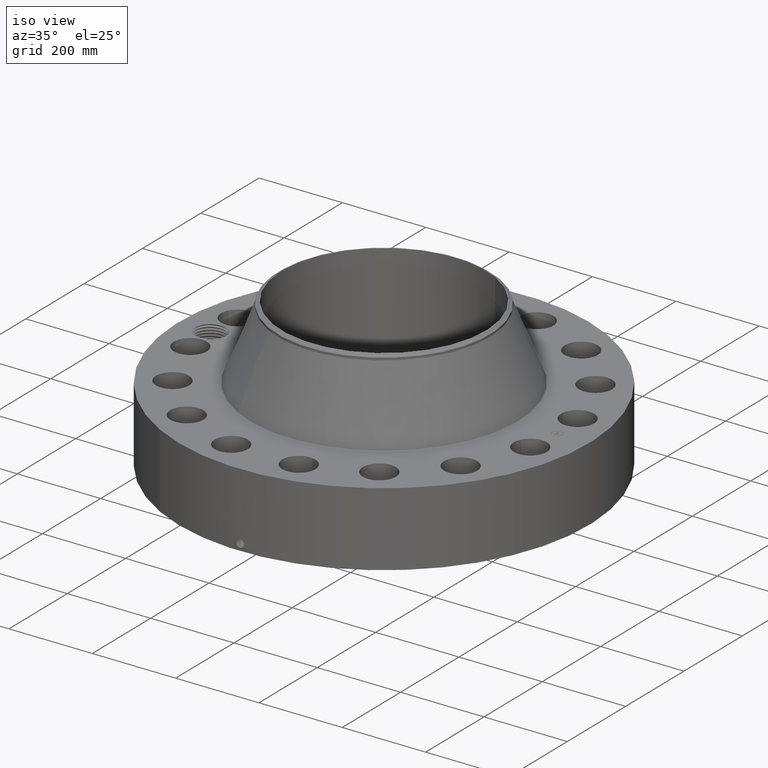
[diagram: clean part render]
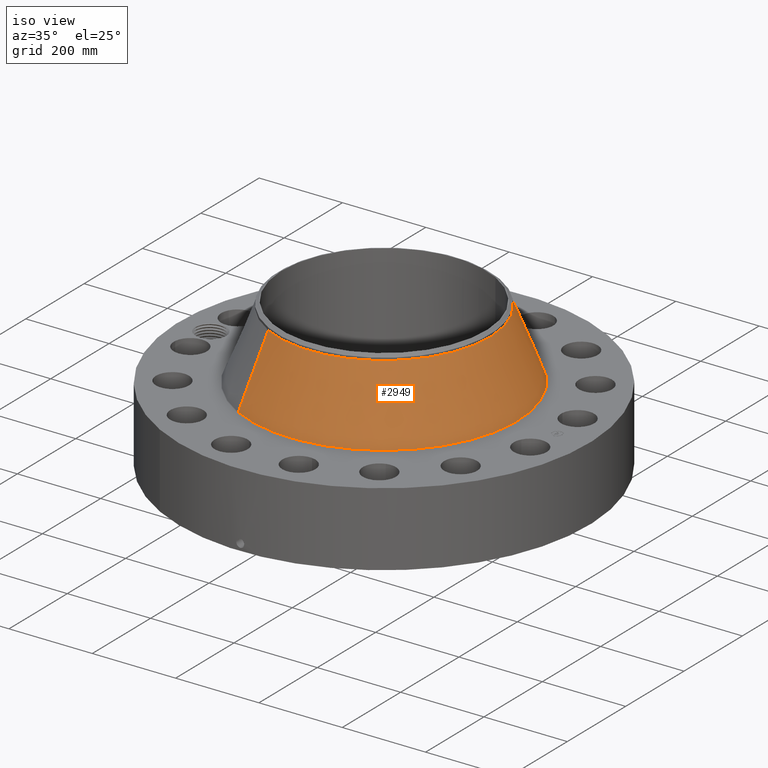
[diagram: same view with one face highlighted and labeled with its STEP entity id]
A machine part, iso view. The second image highlights one B-rep face of the part: STEP entity #2949.
In plain terms, the highlighted conical surface has half-angle 21.88 deg.
Its self-contained STEP definition (entity closure, byte-faithful):
#2264=AXIS2_PLACEMENT_3D('Circle Axis2P3D',#2262,#2263,$) ;
#2922=AXIS2_PLACEMENT_3D('Cone Axis2P3D',#2919,#2920,#2921) ;
#2933=AXIS2_PLACEMENT_3D('Circle Axis2P3D',#2931,#2932,$) ;
#2259=CARTESIAN_POINT('Vertex',(6.03825340539,11.0529487192,7.32528013734)) ;
#2262=CARTESIAN_POINT('Axis2P3D Location',(0.,0.,7.32528013734)) ;
#2266=CARTESIAN_POINT('Vertex',(-6.03825340539,-11.0529487192,7.32528013734)) ;
#2919=CARTESIAN_POINT('Axis2P3D Location',(0.,0.,13.786451355)) ;
#2924=CARTESIAN_POINT('Line Origine',(5.41625439572,9.91438716905,10.5558657462)) ;
#2928=CARTESIAN_POINT('Vertex',(4.79425538606,8.77582561894,13.786451355)) ;
#2931=CARTESIAN_POINT('Axis2P3D Location',(0.,0.,13.786451355)) ;
#2935=CARTESIAN_POINT('Vertex',(-4.79425538606,-8.77582561894,13.786451355)) ;
#2938=CARTESIAN_POINT('Line Origine',(-5.41625439572,-9.91438716905,10.5558657462)) ;
#2263=DIRECTION('Axis2P3D Direction',(0.,0.,-0.0393700787402)) ;
#2920=DIRECTION('Axis2P3D Direction',(0.,0.,-0.0393700787402)) ;
#2921=DIRECTION('Axis2P3D XDirection',(-0.0188750212049,-0.0345504945626,0.)) ;
#2925=DIRECTION('Vector Direction',(0.00703406963738,0.0128757781049,-0.0365340841207)) ;
#2932=DIRECTION('Axis2P3D Direction',(0.,0.,-0.0393700787402)) ;
#2939=DIRECTION('Vector Direction',(-0.00703406963738,-0.0128757781049,-0.0365340841207)) ;
#2926=VECTOR('Line Direction',#2925,0.0393700787402) ;
#2940=VECTOR('Line Direction',#2939,0.0393700787402) ;
#2944=ORIENTED_EDGE('',*,*,#2268,.F.) ;
#2945=ORIENTED_EDGE('',*,*,#2930,.T.) ;
#2946=ORIENTED_EDGE('',*,*,#2937,.T.) ;
#2947=ORIENTED_EDGE('',*,*,#2942,.F.) ;
#2949=ADVANCED_FACE('PartBody',(#2948),#2923,.T.) ;
#2265=CIRCLE('generated circle',#2264,12.5947679445) ;
#2934=CIRCLE('generated circle',#2933,10.) ;
#2923=CONICAL_SURFACE('Cone',#2922,10.,0.381879806004) ;
#2268=EDGE_CURVE('',#2260,#2267,#2265,.T.) ;
#2930=EDGE_CURVE('',#2260,#2929,#2927,.F.) ;
#2937=EDGE_CURVE('',#2929,#2936,#2934,.T.) ;
#2942=EDGE_CURVE('',#2267,#2936,#2941,.F.) ;
#2943=EDGE_LOOP('',(#2944,#2945,#2946,#2947)) ;
#2948=FACE_OUTER_BOUND('',#2943,.T.) ;
#2927=LINE('Line',#2924,#2926) ;
#2941=LINE('Line',#2938,#2940) ;
#2260=VERTEX_POINT('',#2259) ;
#2267=VERTEX_POINT('',#2266) ;
#2929=VERTEX_POINT('',#2928) ;
#2936=VERTEX_POINT('',#2935) ;